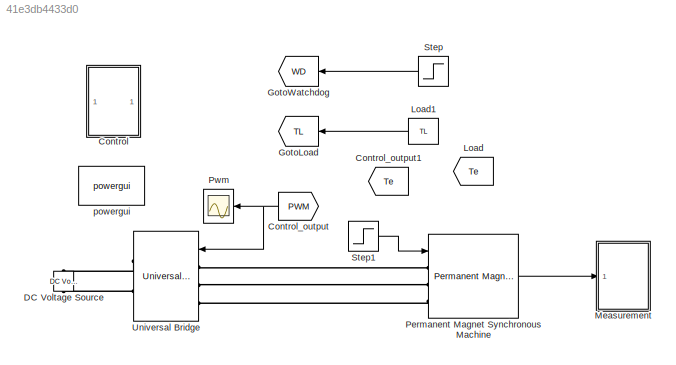
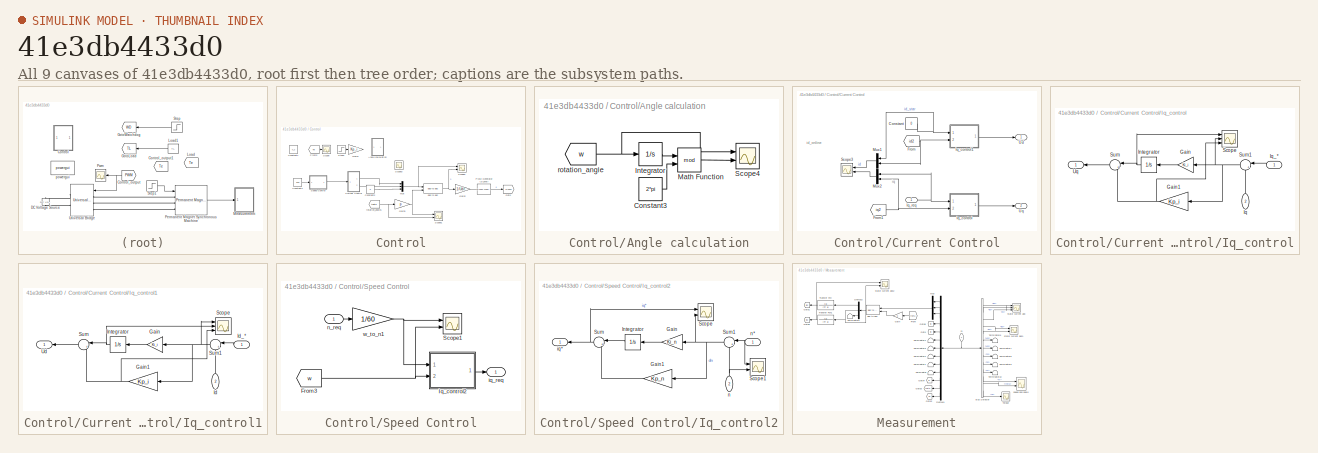
[diagram: thumbnail index - all 9 canvases of the model, root first then tree order]
MODEL slx_41e3db4433d0
KIND model
CONFIG AbsTol = auto
CONFIG FixedStep = auto
CONFIG MaxStep = 1e-5
CONFIG MinStep = auto
CONFIG RelTol = 1e-3
CONFIG SampleTimeConstraint = Unconstrained
CONFIG Solver = VariableStepAuto
CONFIG SolverMode = Auto
CONFIG SolverName = VariableStepAuto
CONFIG StartTime = 0.0
CONFIG StopTime = 1
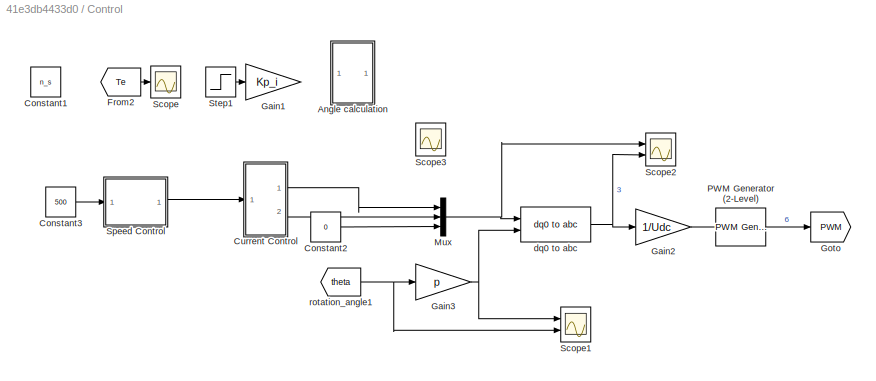
BLOCK [SubSystem] Control
  Ports = []
  RequestExecContextInheritance = off
  Variant = off
BLOCK [SubSystem] Control/Angle calculation
  Commented = on
  Ports = []
  RequestExecContextInheritance = off
  Variant = off
BLOCK [Constant] Control/Angle calculation/Constant3
  Value = 2*pi
BLOCK [Integrator] Control/Angle calculation/Integrator
  Ports = [1, 1]
BLOCK [Math] Control/Angle calculation/Math Function
  Operator = mod
  Ports = [2, 1]
BLOCK [Scope] Control/Angle calculation/Scope4
  NumInputPorts = 2
  Ports = [2]
  ScopeSpecificationString = Simulink.scopes.TimeScopeBlockCfg('CurrentConfiguration', extmgr.ConfigurationSet(extmgr.Configuration('Core','General UI',true,'DisplayFullSourceName',true),extmgr.Configuration('Core','Source UI',true),extmgr.Configuration('Sources','WiredSimulink',true,'DataLoggingVariableName','ScopeData2','DataLoggingLimitDataPoints',true,'DataLoggingSaveFormat','Array','DataLoggingDecimation','1','DataLoggin...<+2227ch>
BLOCK [From] Control/Angle calculation/rotation_angle
  GotoTag = w
  TagVisibility = global
BLOCK [Constant] Control/Constant1
  Commented = on
  Value = n_s
BLOCK [Constant] Control/Constant2
  Value = 0
BLOCK [Constant] Control/Constant3
  Value = 500
BLOCK [SubSystem] Control/Current Control
  Ports = [1, 2]
  RequestExecContextInheritance = off
  Variant = off
BLOCK [Constant] Control/Current Control/Constant
  Value = 0
BLOCK [From] Control/Current Control/From
  GotoTag = id2
  TagVisibility = global
BLOCK [From] Control/Current Control/From1
  GotoTag = iq2
  TagVisibility = global
BLOCK [SubSystem] Control/Current Control/Iq_control
  Ports = [2, 1]
  RequestExecContextInheritance = off
  Variant = off
BLOCK [Gain] Control/Current Control/Iq_control/Gain
  Gain = Ki_i
  OutDataTypeStr = Inherit: Inherit via internal rule
  ParamDataTypeStr = Inherit: Inherit via internal rule
  SaturateOnIntegerOverflow = off
BLOCK [Gain] Control/Current Control/Iq_control/Gain1
  Gain = Kp_i
  OutDataTypeStr = Inherit: Inherit via internal rule
  ParamDataTypeStr = Inherit: Inherit via internal rule
  SaturateOnIntegerOverflow = off
BLOCK [Integrator] Control/Current Control/Iq_control/Integrator
  Ports = [1, 1]
BLOCK [Inport] Control/Current Control/Iq_control/Iq
  IconDisplay = Port number
  Port = 2
BLOCK [Inport] Control/Current Control/Iq_control/Iq_*
  IconDisplay = Port number
BLOCK [Scope] Control/Current Control/Iq_control/Scope
  NumInputPorts = 3
  Ports = [3]
  ScopeSpecificationString = Simulink.scopes.TimeScopeBlockCfg('CurrentConfiguration', extmgr.ConfigurationSet(extmgr.Configuration('Core','General UI',true),extmgr.Configuration('Core','Source UI',true),extmgr.Configuration('Sources','WiredSimulink',true,'DataLoggingVariableName','ScopeData4'),extmgr.Configuration('Visuals','Time Domain',true,'SerializedDisplays',{struct('MinYLimReal','-9687.27068','MaxYLimReal','87185.43612...<+1479ch>
BLOCK [Sum] Control/Current Control/Iq_control/Sum
  IconShape = round
  InputSameDT = off
  Inputs = |++
  OutDataTypeStr = Inherit: Inherit via internal rule
  Ports = [2, 1]
  SaturateOnIntegerOverflow = off
BLOCK [Sum] Control/Current Control/Iq_control/Sum1
  IconShape = round
  InputSameDT = off
  Inputs = |+-
  OutDataTypeStr = Inherit: Inherit via internal rule
  Ports = [2, 1]
  SaturateOnIntegerOverflow = off
BLOCK [Outport] Control/Current Control/Iq_control/Uq
  IconDisplay = Port number
BLOCK [SubSystem] Control/Current Control/Iq_control1
  Ports = [2, 1]
  RequestExecContextInheritance = off
  Variant = off
BLOCK [Gain] Control/Current Control/Iq_control1/Gain
  Gain = Ki_i
  OutDataTypeStr = Inherit: Inherit via internal rule
  ParamDataTypeStr = Inherit: Inherit via internal rule
  SaturateOnIntegerOverflow = off
BLOCK [Gain] Control/Current Control/Iq_control1/Gain1
  Gain = Kp_i
  OutDataTypeStr = Inherit: Inherit via internal rule
  ParamDataTypeStr = Inherit: Inherit via internal rule
  SaturateOnIntegerOverflow = off
BLOCK [Inport] Control/Current Control/Iq_control1/Id
  IconDisplay = Port number
  Port = 2
BLOCK [Inport] Control/Current Control/Iq_control1/Id_*
  IconDisplay = Port number
BLOCK [Integrator] Control/Current Control/Iq_control1/Integrator
  Ports = [1, 1]
BLOCK [Scope] Control/Current Control/Iq_control1/Scope
  NumInputPorts = 3
  Ports = [3]
  ScopeSpecificationString = Simulink.scopes.TimeScopeBlockCfg('CurrentConfiguration', extmgr.ConfigurationSet(extmgr.Configuration('Core','General UI',true),extmgr.Configuration('Core','Source UI',true),extmgr.Configuration('Sources','WiredSimulink',true,'DataLoggingVariableName','ScopeData3'),extmgr.Configuration('Visuals','Time Domain',true,'SerializedDisplays',{struct('MinYLimReal','-23975.72464','MaxYLimReal','2663.9694'...<+1479ch>
BLOCK [Sum] Control/Current Control/Iq_control1/Sum
  IconShape = round
  InputSameDT = off
  Inputs = |++
  OutDataTypeStr = Inherit: Inherit via internal rule
  Ports = [2, 1]
  SaturateOnIntegerOverflow = off
BLOCK [Sum] Control/Current Control/Iq_control1/Sum1
  IconShape = round
  InputSameDT = off
  Inputs = |+-
  OutDataTypeStr = Inherit: Inherit via internal rule
  Ports = [2, 1]
  SaturateOnIntegerOverflow = off
BLOCK [Outport] Control/Current Control/Iq_control1/Ud
  IconDisplay = Port number
BLOCK [Inport] Control/Current Control/Iq_req
  IconDisplay = Port number
BLOCK [Mux] Control/Current Control/Mux1
  DisplayOption = bar
  Inputs = 2
  Ports = [2, 1]
BLOCK [Mux] Control/Current Control/Mux2
  DisplayOption = bar
  Inputs = 2
  Ports = [2, 1]
BLOCK [Scope] Control/Current Control/Scope3
  NumInputPorts = 2
  Ports = [2]
  ScopeSpecificationString = Simulink.scopes.TimeScopeBlockCfg('CurrentConfiguration', extmgr.ConfigurationSet(extmgr.Configuration('Core','General UI',true,'DisplayFullSourceName',true),extmgr.Configuration('Core','Source UI',true),extmgr.Configuration('Sources','WiredSimulink',true,'DataLoggingVariableName','ScopeData1','DataLoggingLimitDataPoints',true,'DataLoggingSaveFormat','Array','DataLoggingDecimation','1','DataLoggin...<+2247ch>
BLOCK [Outport] Control/Current Control/Ud
  IconDisplay = Port number
BLOCK [Outport] Control/Current Control/Uq
  IconDisplay = Port number
  Port = 2
BLOCK [From] Control/From2
  Commented = on
  GotoTag = Te
  TagVisibility = global
BLOCK [Gain] Control/Gain1
  Commented = on
  Gain = Kp_i
  OutDataTypeStr = Inherit: Inherit via internal rule
  ParamDataTypeStr = Inherit: Inherit via internal rule
  SaturateOnIntegerOverflow = off
BLOCK [Gain] Control/Gain2
  Gain = 1/Udc
  Multiplication = Matrix(u*K)
  OutDataTypeStr = Inherit: Inherit via internal rule
  ParamDataTypeStr = Inherit: Inherit via internal rule
  SaturateOnIntegerOverflow = off
BLOCK [Gain] Control/Gain3
  Gain = p
  OutDataTypeStr = Inherit: Inherit via internal rule
  ParamDataTypeStr = Inherit: Inherit via internal rule
  SaturateOnIntegerOverflow = off
BLOCK [Goto] Control/Goto
  GotoTag = PWM
  TagVisibility = global
BLOCK [Mux] Control/Mux
  DisplayOption = bar
  Inputs = 3
  Ports = [3, 1]
BLOCK [Reference] Control/PWM Generator (2-Level)  REF=powerlib_meascontrol/Pulse & Signal
Generators/PWM Generator
(2-Level)
  Ports = [1, 1]
  SourceBlock = powerlib_meascontrol/Pulse & Signal\nGenerators/PWM Generator\n(2-Level)
  SourceType = PWM Generator (2-Level)
BLOCK [Scope] Control/Scope
  Commented = on
  Ports = [1]
  ScopeSpecificationString = Simulink.scopes.TimeScopeBlockCfg('CurrentConfiguration', extmgr.ConfigurationSet(extmgr.Configuration('Core','General UI',true),extmgr.Configuration('Core','Source UI',true),extmgr.Configuration('Sources','WiredSimulink',true,'DataLoggingVariableName','ScopeData1','DataLoggingLimitDataPoints',true,'DataLoggingSaveFormat','Array','DataLoggingDecimation','1','DataLoggingDecimateData',true),extmgr.C...<+1546ch>
BLOCK [Scope] Control/Scope1
  NumInputPorts = 2
  Ports = [2]
  ScopeSpecificationString = Simulink.scopes.TimeScopeBlockCfg('CurrentConfiguration', extmgr.ConfigurationSet(extmgr.Configuration('Core','General UI',true,'DisplayFullSourceName',true),extmgr.Configuration('Core','Source UI',true),extmgr.Configuration('Sources','WiredSimulink',true,'DataLoggingVariableName','ScopeData2','DataLoggingLimitDataPoints',true,'DataLoggingSaveFormat','Array','DataLoggingDecimation','1','DataLoggin...<+2244ch>
BLOCK [Scope] Control/Scope2
  NumInputPorts = 2
  Ports = [2]
  ScopeSpecificationString = Simulink.scopes.TimeScopeBlockCfg('CurrentConfiguration', extmgr.ConfigurationSet(extmgr.Configuration('Core','General UI',true,'DisplayFullSourceName',true),extmgr.Configuration('Core','Source UI',true),extmgr.Configuration('Sources','WiredSimulink',true,'DataLoggingVariableName','ScopeData1','DataLoggingLimitDataPoints',true,'DataLoggingSaveFormat','Array','DataLoggingDecimation','1','DataLoggin...<+2272ch>
BLOCK [Scope] Control/Scope3
  NumInputPorts = 2
  Ports = [2]
  ScopeSpecificationString = Simulink.scopes.TimeScopeBlockCfg('CurrentConfiguration', extmgr.ConfigurationSet(extmgr.Configuration('Core','General UI',true,'DisplayFullSourceName',true),extmgr.Configuration('Core','Source UI',true),extmgr.Configuration('Sources','WiredSimulink',true,'DataLoggingVariableName','ScopeData3','DataLoggingLimitDataPoints',true,'DataLoggingSaveFormat','Array','DataLoggingDecimation','1','DataLoggin...<+2240ch>
BLOCK [SubSystem] Control/Speed Control
  Ports = [1, 1]
  RequestExecContextInheritance = off
  Variant = off
BLOCK [From] Control/Speed Control/From3
  GotoTag = w
  TagVisibility = global
BLOCK [SubSystem] Control/Speed Control/Iq_control2
  Ports = [2, 1]
  RequestExecContextInheritance = off
  Variant = off
BLOCK [Gain] Control/Speed Control/Iq_control2/Gain
  Gain = Ki_n
  OutDataTypeStr = Inherit: Inherit via internal rule
  ParamDataTypeStr = Inherit: Inherit via internal rule
  SaturateOnIntegerOverflow = off
BLOCK [Gain] Control/Speed Control/Iq_control2/Gain1
  Gain = Kp_n
  OutDataTypeStr = Inherit: Inherit via internal rule
  ParamDataTypeStr = Inherit: Inherit via internal rule
  SaturateOnIntegerOverflow = off
BLOCK [Integrator] Control/Speed Control/Iq_control2/Integrator
  Ports = [1, 1]
BLOCK [Scope] Control/Speed Control/Iq_control2/Scope
  NumInputPorts = 2
  Ports = [2]
  ScopeSpecificationString = Simulink.scopes.TimeScopeBlockCfg('CurrentConfiguration', extmgr.ConfigurationSet(extmgr.Configuration('Core','General UI',true),extmgr.Configuration('Core','Source UI',true),extmgr.Configuration('Sources','WiredSimulink',true,'DataLoggingVariableName','ScopeData1'),extmgr.Configuration('Visuals','Time Domain',true,'SerializedDisplays',{struct('MinYLimReal','-84.37644','MaxYLimReal','14.9363','YLa...<+1468ch>
BLOCK [Scope] Control/Speed Control/Iq_control2/Scope1
  NumInputPorts = 2
  Ports = [2]
  ScopeSpecificationString = Simulink.scopes.TimeScopeBlockCfg('CurrentConfiguration', extmgr.ConfigurationSet(extmgr.Configuration('Core','General UI',true),extmgr.Configuration('Core','Source UI',true),extmgr.Configuration('Sources','WiredSimulink',true,'DataLoggingVariableName','ScopeData2'),extmgr.Configuration('Visuals','Time Domain',true,'SerializedDisplays',{struct('MinYLimReal','-454.3088','MaxYLimReal','569.41483','Y...<+1446ch>
BLOCK [Sum] Control/Speed Control/Iq_control2/Sum
  IconShape = round
  InputSameDT = off
  Inputs = |++
  OutDataTypeStr = Inherit: Inherit via internal rule
  Ports = [2, 1]
  SaturateOnIntegerOverflow = off
BLOCK [Sum] Control/Speed Control/Iq_control2/Sum1
  IconShape = round
  InputSameDT = off
  Inputs = |+-
  OutDataTypeStr = Inherit: Inherit via internal rule
  Ports = [2, 1]
  SaturateOnIntegerOverflow = off
BLOCK [Outport] Control/Speed Control/Iq_control2/iq*
  IconDisplay = Port number
BLOCK [Inport] Control/Speed Control/Iq_control2/n
  IconDisplay = Port number
  Port = 2
BLOCK [Inport] Control/Speed Control/Iq_control2/n*
  IconDisplay = Port number
BLOCK [Scope] Control/Speed Control/Scope1
  NumInputPorts = 2
  Ports = [2]
  ScopeSpecificationString = Simulink.scopes.TimeScopeBlockCfg('CurrentConfiguration', extmgr.ConfigurationSet(extmgr.Configuration('Core','General UI',true),extmgr.Configuration('Core','Source UI',true),extmgr.Configuration('Sources','WiredSimulink',true,'DataLoggingVariableName','ScopeData2','DataLoggingLimitDataPoints',true,'DataLoggingSaveFormat','Array','DataLoggingDecimation','1','DataLoggingDecimateData',true,'DataLogg...<+1660ch>
BLOCK [Outport] Control/Speed Control/iq_req
  IconDisplay = Port number
BLOCK [Inport] Control/Speed Control/n_req
  IconDisplay = Port number
BLOCK [Gain] Control/Speed Control/w_to_n1
  Gain = 1/60
  OutDataTypeStr = Inherit: Inherit via internal rule
  ParamDataTypeStr = Inherit: Inherit via internal rule
  SaturateOnIntegerOverflow = off
BLOCK [Step] Control/Step1
  After = 3
  Commented = on
  SampleTime = 0
BLOCK [Reference] Control/dq0 to abc  REF=powerlib_meascontrol/Transformations/dq0 to abc
  Ports = [2, 1]
  SourceBlock = powerlib_meascontrol/Transformations/dq0 to abc
  SourceType = dq0 to abc Transformation
BLOCK [From] Control/rotation_angle1
  GotoTag = theta
  TagVisibility = global
BLOCK [From] Control_output
  GotoTag = PWM
  TagVisibility = global
BLOCK [From] Control_output1
  GotoTag = Te
  TagVisibility = global
BLOCK [Reference] DC Voltage Source  REF=powerlib/Electrical
Sources/DC Voltage Source
  Ports = [0, 0, 0, 0, 0, 1, 1]
  SourceBlock = powerlib/Electrical\nSources/DC Voltage Source
  SourceType = DC Voltage Source
BLOCK [Goto] GotoLoad
  GotoTag = TL
BLOCK [Goto] GotoWatchdog
  Commented = on
  GotoTag = WD
BLOCK [From] Load
  Commented = on
  GotoTag = Te
  TagVisibility = global
BLOCK [Constant] Load1
  Value = TL
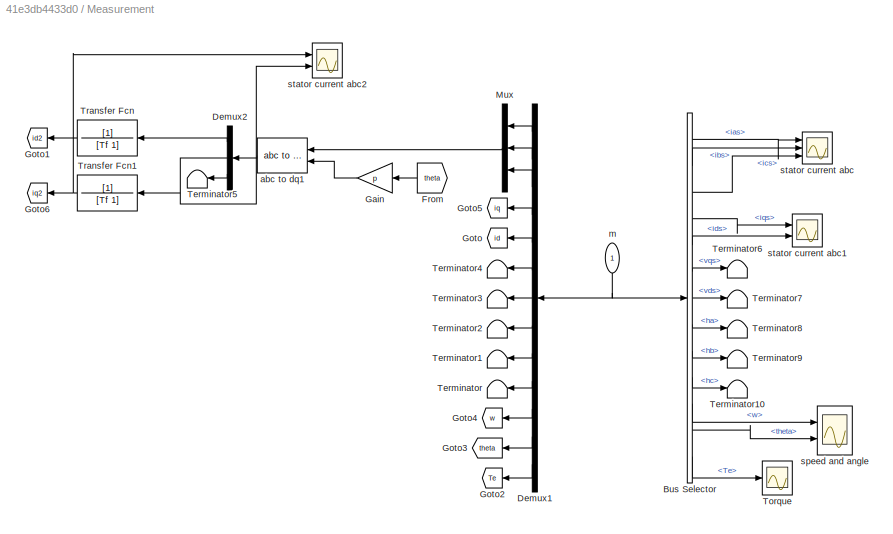
BLOCK [SubSystem] Measurement
  Ports = [1]
  RequestExecContextInheritance = off
  Variant = off
BLOCK [BusSelector] Measurement/Bus Selector
  OutputSignals = ias,ibs,ics,iqs,ids,vqs,vds,ha,hb,hc,w,theta,Te
  Ports = [1, 13]
BLOCK [Demux] Measurement/Demux1
  DisplayOption = bar
  Outputs = 13
  Ports = [1, 13]
BLOCK [Demux] Measurement/Demux2
  DisplayOption = bar
  Outputs = 3
  Ports = [1, 3]
BLOCK [From] Measurement/From
  GotoTag = theta
  TagVisibility = global
BLOCK [Gain] Measurement/Gain
  Gain = p
  OutDataTypeStr = Inherit: Inherit via internal rule
  ParamDataTypeStr = Inherit: Inherit via internal rule
  SaturateOnIntegerOverflow = off
BLOCK [Goto] Measurement/Goto
  GotoTag = id
  TagVisibility = global
BLOCK [Goto] Measurement/Goto1
  GotoTag = id2
  TagVisibility = global
BLOCK [Goto] Measurement/Goto2
  GotoTag = Te
  TagVisibility = global
BLOCK [Goto] Measurement/Goto3
  GotoTag = theta
  TagVisibility = global
BLOCK [Goto] Measurement/Goto4
  GotoTag = w
  TagVisibility = global
BLOCK [Goto] Measurement/Goto5
  GotoTag = iq
  TagVisibility = global
BLOCK [Goto] Measurement/Goto6
  GotoTag = iq2
  TagVisibility = global
BLOCK [Mux] Measurement/Mux
  DisplayOption = bar
  Inputs = 3
  Ports = [3, 1]
BLOCK [Terminator] Measurement/Terminator
BLOCK [Terminator] Measurement/Terminator1
BLOCK [Terminator] Measurement/Terminator10
BLOCK [Terminator] Measurement/Terminator2
BLOCK [Terminator] Measurement/Terminator3
BLOCK [Terminator] Measurement/Terminator4
BLOCK [Terminator] Measurement/Terminator5
BLOCK [Terminator] Measurement/Terminator6
BLOCK [Terminator] Measurement/Terminator7
BLOCK [Terminator] Measurement/Terminator8
BLOCK [Terminator] Measurement/Terminator9
BLOCK [Scope] Measurement/Torque
  Ports = [1]
  ScopeSpecificationString = Simulink.scopes.TimeScopeBlockCfg('CurrentConfiguration', extmgr.ConfigurationSet(extmgr.Configuration('Core','General UI',true),extmgr.Configuration('Core','Source UI',true),extmgr.Configuration('Sources','WiredSimulink',true,'DataLoggingVariableName','ScopeData5'),extmgr.Configuration('Visuals','Time Domain',true,'SerializedDisplays',{struct('MinYLimReal','-3.68292','MaxYLimReal','15.53163','YLa...<+1438ch>
BLOCK [TransferFcn] Measurement/Transfer Fcn
  Denominator = [Tf 1]
BLOCK [TransferFcn] Measurement/Transfer Fcn1
  Denominator = [Tf 1]
BLOCK [Reference] Measurement/abc to dq1  REF=powerlib_meascontrol/Transformations/abc to dq0
  Ports = [2, 1]
  SourceBlock = powerlib_meascontrol/Transformations/abc to dq0
  SourceType = abc to dq0 Transformation
BLOCK [Inport] Measurement/m
  IconDisplay = Port number
BLOCK [Scope] Measurement/speed and angle
  NumInputPorts = 2
  Ports = [2]
  ScopeSpecificationString = Simulink.scopes.TimeScopeBlockCfg('CurrentConfiguration', extmgr.ConfigurationSet(extmgr.Configuration('Core','General UI',true),extmgr.Configuration('Core','Source UI',true),extmgr.Configuration('Sources','WiredSimulink',true,'DataLoggingVariableName','ScopeData4'),extmgr.Configuration('Visuals','Time Domain',true,'SerializedDisplays',{struct('MinYLimReal','-1.32428','MaxYLimReal','11.91856','YLa...<+1445ch>
BLOCK [Scope] Measurement/stator current abc
  NumInputPorts = 3
  Ports = [3]
  ScopeSpecificationString = Simulink.scopes.TimeScopeBlockCfg('CurrentConfiguration', extmgr.ConfigurationSet(extmgr.Configuration('Core','General UI',true),extmgr.Configuration('Core','Source UI',true),extmgr.Configuration('Sources','WiredSimulink',true),extmgr.Configuration('Visuals','Time Domain',true,'SerializedDisplays',{struct('MinYLimReal','-13.08146','MaxYLimReal','22.56242','YLabelReal','','MinYLimMag','0.00000','Ma...<+1494ch>
BLOCK [Scope] Measurement/stator current abc1
  NumInputPorts = 2
  Ports = [2]
  ScopeSpecificationString = Simulink.scopes.TimeScopeBlockCfg('CurrentConfiguration', extmgr.ConfigurationSet(extmgr.Configuration('Core','General UI',true),extmgr.Configuration('Core','Source UI',true),extmgr.Configuration('Sources','WiredSimulink',true,'DataLoggingVariableName','ScopeData1'),extmgr.Configuration('Visuals','Time Domain',true,'SerializedDisplays',{struct('MinYLimReal','-5.14087','MaxYLimReal','21.68011','YLa...<+1472ch>
BLOCK [Scope] Measurement/stator current abc2
  NumInputPorts = 2
  Ports = [2]
  ScopeSpecificationString = Simulink.scopes.TimeScopeBlockCfg('CurrentConfiguration', extmgr.ConfigurationSet(extmgr.Configuration('Core','General UI',true),extmgr.Configuration('Core','Source UI',true),extmgr.Configuration('Sources','WiredSimulink',true,'DataLoggingVariableName','ScopeData1'),extmgr.Configuration('Visuals','Time Domain',true,'SerializedDisplays',{struct('MinYLimReal','-166.32594','MaxYLimReal','176.93827','...<+2121ch>
BLOCK [Reference] Permanent Magnet Synchronous Machine  REF=powerlib/Machines/Permanent Magnet
Synchronous Machine
  Ports = [1, 1, 0, 0, 0, 3]
  SourceBlock = powerlib/Machines/Permanent Magnet\nSynchronous Machine
  SourceType = Permanent Magnet Synchronous Machine
BLOCK [Scope] Pwm
  Ports = [1]
  ScopeSpecificationString = Simulink.scopes.TimeScopeBlockCfg('CurrentConfiguration', extmgr.ConfigurationSet(extmgr.Configuration('Core','General UI',true),extmgr.Configuration('Core','Source UI',true),extmgr.Configuration('Sources','WiredSimulink',true,'DataLoggingVariableName','ScopeData3','DataLogging',true),extmgr.Configuration('Visuals','Time Domain',true,'SerializedDisplays',{struct('MinYLimReal','-0.125','MaxYLimReal...<+1536ch>
BLOCK [Step] Step
  After = 0
  Before = 1
  Commented = on
  SampleTime = 0
BLOCK [Step] Step1
  After = TL
  SampleTime = 0
  Time = 0.5
BLOCK [Reference] Universal Bridge  REF=powerlib/Power
Electronics/Universal Bridge
  Ports = [1, 0, 0, 0, 0, 3, 2]
  SourceBlock = powerlib/Power\nElectronics/Universal Bridge
  SourceType = Universal Bridge
BLOCK [Reference] powergui  REF=powerlib/powergui
  Ports = []
  Priority = 1
  SourceBlock = powerlib/powergui
  SourceType = PSB option menu block
  UserDataPersistent = on
ANNOTATION Control/Current Control: id_online
ANNOTATION Control/Current Control: iq
LINE Control/Angle calculation/Constant3:1 -> Control/Angle calculation/Math Function:2
LINE Control/Angle calculation/Integrator:1 -> Control/Angle calculation/Math Function:1
LINE Control/Angle calculation/Math Function:1 -> Control/Angle calculation/Scope4:2
NET Control/Angle calculation/rotation_angle:1 -> Control/Angle calculation/Integrator:1, Control/Angle calculation/Scope4:1
LINE Control/Constant2:1 -> Control/Mux:3
LINE Control/Constant3:1 -> Control/Speed Control:1
NET Control/Current Control/Constant:1 -> Control/Current Control/Iq_control1:1, Control/Current Control/Mux1:1
NET Control/Current Control/From1:1 -> Control/Current Control/Iq_control:2, Control/Current Control/Mux2:2
NET Control/Current Control/From:1 -> Control/Current Control/Iq_control1:2, Control/Current Control/Mux1:2
NET Control/Current Control/Iq_control/Gain1:1 -> Control/Current Control/Iq_control/Scope:3, Control/Current Control/Iq_control/Sum:2
LINE Control/Current Control/Iq_control/Gain:1 -> Control/Current Control/Iq_control/Integrator:1
NET Control/Current Control/Iq_control/Integrator:1 -> Control/Current Control/Iq_control/Scope:1, Control/Current Control/Iq_control/Sum:1
LINE Control/Current Control/Iq_control/Iq:1 -> Control/Current Control/Iq_control/Sum1:2
LINE Control/Current Control/Iq_control/Iq_*:1 -> Control/Current Control/Iq_control/Sum1:1
NET Control/Current Control/Iq_control/Sum1:1 -> Control/Current Control/Iq_control/Gain1:1, Control/Current Control/Iq_control/Gain:1, Control/Current Control/Iq_control/Scope:2
LINE Control/Current Control/Iq_control/Sum:1 -> Control/Current Control/Iq_control/Uq:1
NET Control/Current Control/Iq_control1/Gain1:1 -> Control/Current Control/Iq_control1/Scope:3, Control/Current Control/Iq_control1/Sum:2
LINE Control/Current Control/Iq_control1/Gain:1 -> Control/Current Control/Iq_control1/Integrator:1
LINE Control/Current Control/Iq_control1/Id:1 -> Control/Current Control/Iq_control1/Sum1:2
LINE Control/Current Control/Iq_control1/Id_*:1 -> Control/Current Control/Iq_control1/Sum1:1
NET Control/Current Control/Iq_control1/Integrator:1 -> Control/Current Control/Iq_control1/Scope:2, Control/Current Control/Iq_control1/Sum:1
NET Control/Current Control/Iq_control1/Sum1:1 -> Control/Current Control/Iq_control1/Gain1:1, Control/Current Control/Iq_control1/Gain:1, Control/Current Control/Iq_control1/Scope:1
LINE Control/Current Control/Iq_control1/Sum:1 -> Control/Current Control/Iq_control1/Ud:1
LINE Control/Current Control/Iq_control1:1 -> Control/Current Control/Ud:1
LINE Control/Current Control/Iq_control:1 -> Control/Current Control/Uq:1
NET Control/Current Control/Iq_req:1 -> Control/Current Control/Iq_control:1, Control/Current Control/Mux2:1
LINE Control/Current Control/Mux1:1 -> Control/Current Control/Scope3:1
LINE Control/Current Control/Mux2:1 -> Control/Current Control/Scope3:2
LINE Control/Current Control:1 -> Control/Mux:1
LINE Control/Current Control:2 -> Control/Mux:2
LINE Control/From2:1 -> Control/Scope:1
LINE Control/Gain2:1 -> Control/PWM Generator (2-Level):1
NET Control/Gain3:1 -> Control/Scope1:1, Control/dq0 to abc:2
NET Control/Mux:1 -> Control/Scope2:1, Control/dq0 to abc:1
LINE Control/PWM Generator (2-Level):1 -> Control/Goto:1
NET Control/Speed Control/From3:1 -> Control/Speed Control/Iq_control2:2, Control/Speed Control/Scope1:2
LINE Control/Speed Control/Iq_control2/Gain1:1 -> Control/Speed Control/Iq_control2/Sum:2
LINE Control/Speed Control/Iq_control2/Gain:1 -> Control/Speed Control/Iq_control2/Integrator:1
LINE Control/Speed Control/Iq_control2/Integrator:1 -> Control/Speed Control/Iq_control2/Sum:1
NET Control/Speed Control/Iq_control2/Sum1:1 -> Control/Speed Control/Iq_control2/Gain1:1, Control/Speed Control/Iq_control2/Gain:1, Control/Speed Control/Iq_control2/Scope:2
NET Control/Speed Control/Iq_control2/Sum:1 -> Control/Speed Control/Iq_control2/Scope:1, Control/Speed Control/Iq_control2/iq*:1
NET Control/Speed Control/Iq_control2/n*:1 -> Control/Speed Control/Iq_control2/Scope1:1, Control/Speed Control/Iq_control2/Sum1:1
NET Control/Speed Control/Iq_control2/n:1 -> Control/Speed Control/Iq_control2/Scope1:2, Control/Speed Control/Iq_control2/Sum1:2
LINE Control/Speed Control/Iq_control2:1 -> Control/Speed Control/iq_req:1
LINE Control/Speed Control/n_req:1 -> Control/Speed Control/w_to_n1:1
NET Control/Speed Control/w_to_n1:1 -> Control/Speed Control/Iq_control2:1, Control/Speed Control/Scope1:1
LINE Control/Speed Control:1 -> Control/Current Control:1
LINE Control/Step1:1 -> Control/Gain1:1
NET Control/dq0 to abc:1 -> Control/Gain2:1, Control/Scope2:2
NET Control/rotation_angle1:1 -> Control/Gain3:1, Control/Scope1:2
NET Control_output:1 -> Pwm:1, Universal Bridge:1
LINE Load1:1 -> GotoLoad:1
LINE Measurement/Bus Selector:1 -> Measurement/stator current abc:1
LINE Measurement/Bus Selector:10 -> Measurement/Terminator10:1
LINE Measurement/Bus Selector:11 -> Measurement/speed and angle:1
LINE Measurement/Bus Selector:12 -> Measurement/speed and angle:2
LINE Measurement/Bus Selector:13 -> Measurement/Torque:1
LINE Measurement/Bus Selector:2 -> Measurement/stator current abc:2
LINE Measurement/Bus Selector:3 -> Measurement/stator current abc:3
LINE Measurement/Bus Selector:4 -> Measurement/stator current abc1:1
LINE Measurement/Bus Selector:5 -> Measurement/stator current abc1:2
LINE Measurement/Bus Selector:6 -> Measurement/Terminator6:1
LINE Measurement/Bus Selector:7 -> Measurement/Terminator7:1
LINE Measurement/Bus Selector:8 -> Measurement/Terminator8:1
LINE Measurement/Bus Selector:9 -> Measurement/Terminator9:1
LINE Measurement/Demux1:1 -> Measurement/Mux:1
LINE Measurement/Demux1:10 -> Measurement/Terminator:1
LINE Measurement/Demux1:11 -> Measurement/Goto4:1
LINE Measurement/Demux1:12 -> Measurement/Goto3:1
LINE Measurement/Demux1:13 -> Measurement/Goto2:1
LINE Measurement/Demux1:2 -> Measurement/Mux:2
LINE Measurement/Demux1:3 -> Measurement/Mux:3
LINE Measurement/Demux1:4 -> Measurement/Goto5:1
LINE Measurement/Demux1:5 -> Measurement/Goto:1
LINE Measurement/Demux1:6 -> Measurement/Terminator4:1
LINE Measurement/Demux1:7 -> Measurement/Terminator3:1
LINE Measurement/Demux1:8 -> Measurement/Terminator2:1
LINE Measurement/Demux1:9 -> Measurement/Terminator1:1
LINE Measurement/Demux2:1 -> Measurement/Transfer Fcn:1
NET Measurement/Demux2:2 -> Measurement/Transfer Fcn1:1, Measurement/stator current abc2:2
LINE Measurement/Demux2:3 -> Measurement/Terminator5:1
LINE Measurement/From:1 -> Measurement/Gain:1
LINE Measurement/Gain:1 -> Measurement/abc to dq1:2
LINE Measurement/Mux:1 -> Measurement/abc to dq1:1
NET Measurement/Transfer Fcn1:1 -> Measurement/Goto6:1, Measurement/stator current abc2:1
LINE Measurement/Transfer Fcn:1 -> Measurement/Goto1:1
LINE Measurement/abc to dq1:1 -> Measurement/Demux2:1
NET Measurement/m:1 -> Measurement/Bus Selector:1, Measurement/Demux1:1
LINE Permanent Magnet Synchronous Machine:1 -> Measurement:1
LINE Step1:1 -> Permanent Magnet Synchronous Machine:1
LINE Step:1 -> GotoWatchdog:1
PLINE DC Voltage Source:LConn1 -- Universal Bridge:RConn2
PLINE DC Voltage Source:RConn1 -- Universal Bridge:RConn1
PLINE Permanent Magnet Synchronous Machine:LConn1 -- Universal Bridge:LConn1
PLINE Permanent Magnet Synchronous Machine:LConn2 -- Universal Bridge:LConn2
PLINE Permanent Magnet Synchronous Machine:LConn3 -- Universal Bridge:LConn3
note: NET lines group one-source signal fan-out (src -> all destinations, sorted); 1:1 wires keep LINE
